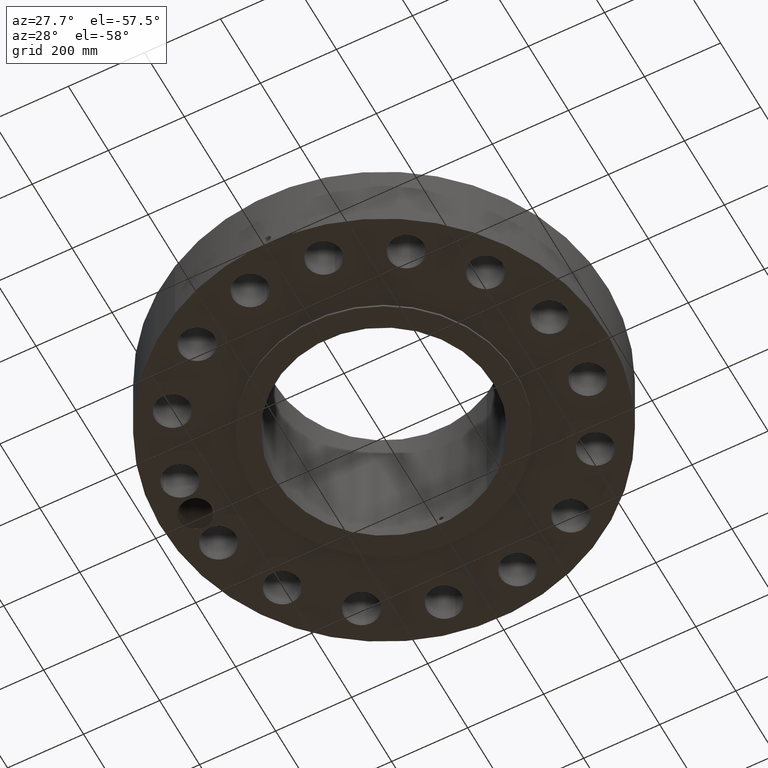
[diagram: clean part render]
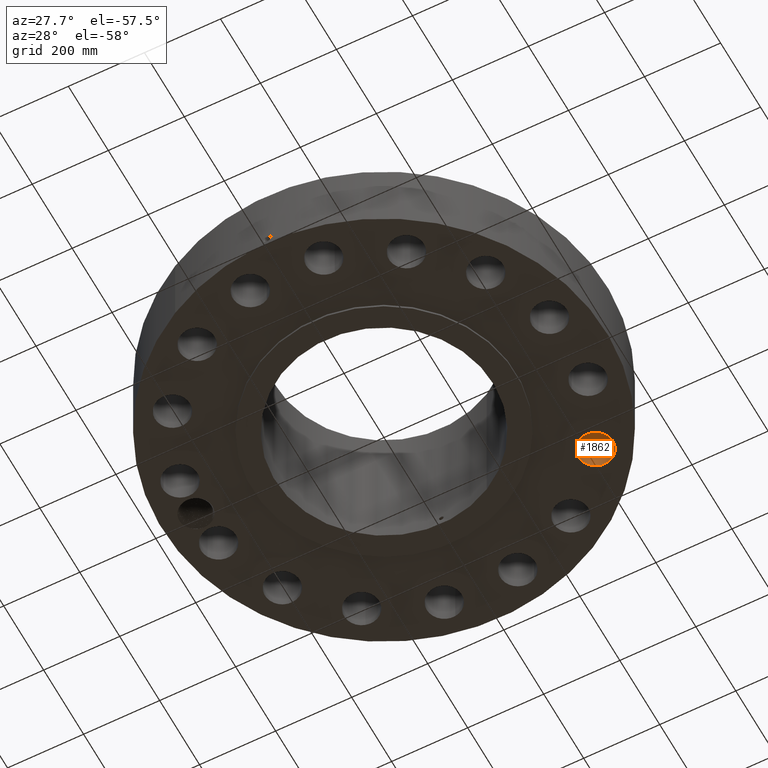
[diagram: same view with one face highlighted and labeled with its STEP entity id]
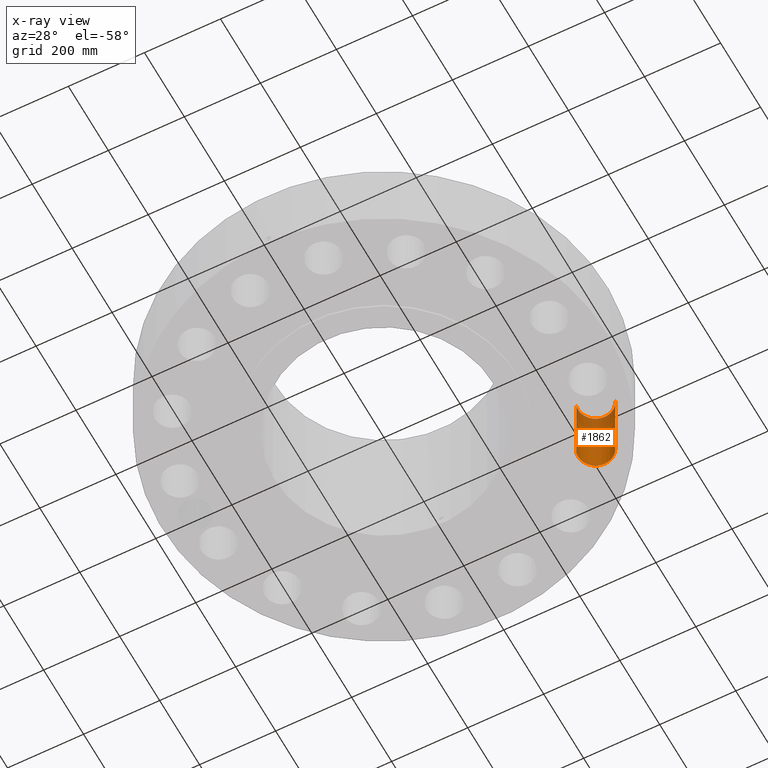
[diagram: x-ray of the same camera — body ghosted, the highlighted face saturated]
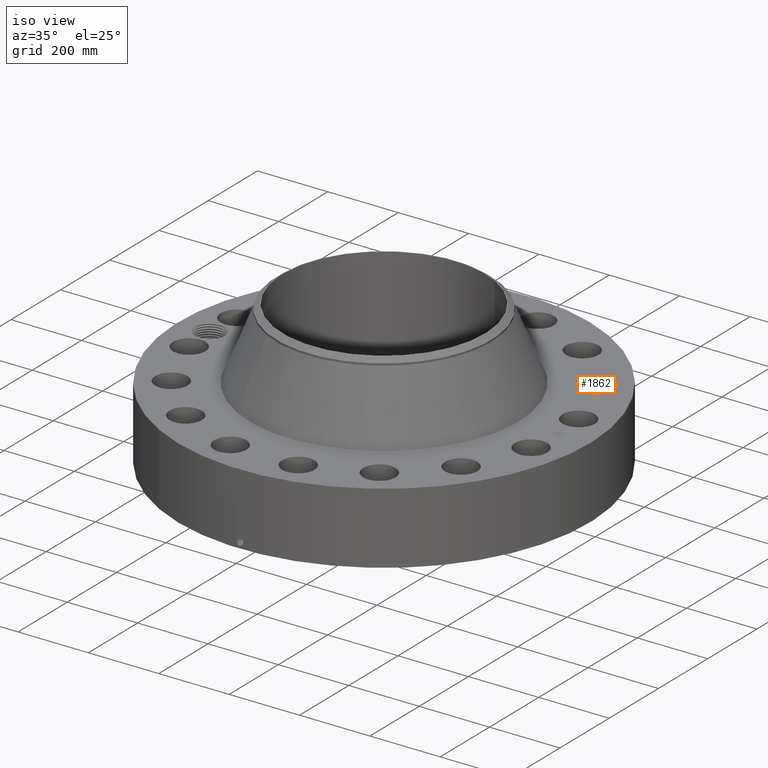
[diagram: same view with one face highlighted and labeled with its STEP entity id]
A machine part, auxiliary view. The second image highlights one B-rep face of the part: STEP entity #1862.
The next image is the same camera in x-ray: the body ghosted, the highlighted face saturated — about 24% of this face is hidden behind the body in this view.
A second angle (iso view) of the same face is appended — the face is thin or edge-on in the first view.
In plain terms, the highlighted cylindrical surface (edge-blend (fillet) strip) has radius 45.974 mm, axis along (0, 0, -1).
Its self-contained STEP definition (entity closure, byte-faithful):
#512=AXIS2_PLACEMENT_3D('Circle Axis2P3D',#510,#511,$) ;
#1000=AXIS2_PLACEMENT_3D('Circle Axis2P3D',#998,#999,$) ;
#1844=AXIS2_PLACEMENT_3D('Cylinder Axis2P3D',#1841,#1842,#1843) ;
#510=CARTESIAN_POINT('Axis2P3D Location',(16.21365744,10.8336195439,0.250000000001)) ;
#514=CARTESIAN_POINT('Vertex',(14.4768726097,10.3240329926,0.250000000001)) ;
#516=CARTESIAN_POINT('Vertex',(17.9504422702,11.3432060953,0.250000000001)) ;
#993=CARTESIAN_POINT('Vertex',(17.9504422702,11.3432060953,8.25000000003)) ;
#995=CARTESIAN_POINT('Vertex',(14.4768726097,10.3240329926,8.25000000003)) ;
#998=CARTESIAN_POINT('Axis2P3D Location',(16.21365744,10.8336195439,8.25000000003)) ;
#1841=CARTESIAN_POINT('Axis2P3D Location',(16.21365744,10.8336195439,8.24606299216)) ;
#1846=CARTESIAN_POINT('Line Origine',(14.4768726097,10.3240329926,4.25000000002)) ;
#1851=CARTESIAN_POINT('Line Origine',(17.9504422702,11.3432060953,4.25000000002)) ;
#511=DIRECTION('Axis2P3D Direction',(0.,0.,-0.0393700787402)) ;
#999=DIRECTION('Axis2P3D Direction',(0.,0.,-0.0393700787402)) ;
#1842=DIRECTION('Axis2P3D Direction',(0.,0.,-0.0393700787402)) ;
#1843=DIRECTION('Axis2P3D XDirection',(0.0377775444876,0.0110842335096,0.)) ;
#1847=DIRECTION('Vector Direction',(0.,0.,-0.0393700787402)) ;
#1852=DIRECTION('Vector Direction',(0.,0.,-0.0393700787402)) ;
#1848=VECTOR('Line Direction',#1847,0.0393700787402) ;
#1853=VECTOR('Line Direction',#1852,0.0393700787402) ;
#1857=ORIENTED_EDGE('',*,*,#1850,.F.) ;
#1858=ORIENTED_EDGE('',*,*,#518,.T.) ;
#1859=ORIENTED_EDGE('',*,*,#1855,.T.) ;
#1860=ORIENTED_EDGE('',*,*,#1002,.F.) ;
#1862=ADVANCED_FACE('PartBody',(#1861),#1845,.F.) ;
#513=CIRCLE('generated circle',#512,1.81000000001) ;
#1001=CIRCLE('generated circle',#1000,1.81000000001) ;
#1845=CYLINDRICAL_SURFACE('generated cylinder',#1844,1.81000000001) ;
#518=EDGE_CURVE('',#515,#517,#513,.T.) ;
#1002=EDGE_CURVE('',#996,#994,#1001,.T.) ;
#1850=EDGE_CURVE('',#515,#996,#1849,.F.) ;
#1855=EDGE_CURVE('',#517,#994,#1854,.F.) ;
#1856=EDGE_LOOP('',(#1857,#1858,#1859,#1860)) ;
#1861=FACE_OUTER_BOUND('',#1856,.T.) ;
#1849=LINE('Line',#1846,#1848) ;
#1854=LINE('Line',#1851,#1853) ;
#515=VERTEX_POINT('',#514) ;
#517=VERTEX_POINT('',#516) ;
#994=VERTEX_POINT('',#993) ;
#996=VERTEX_POINT('',#995) ;